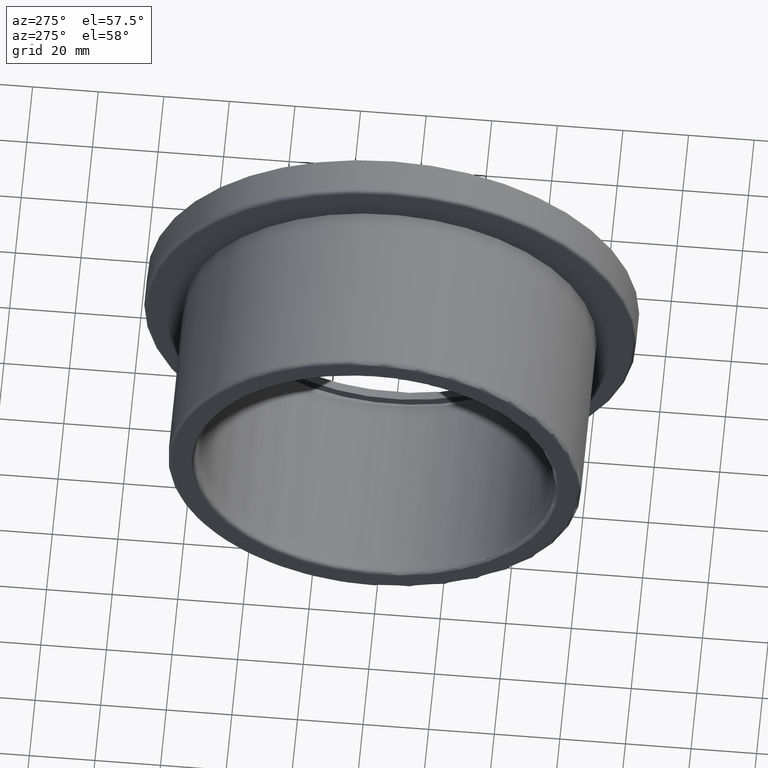
[diagram: clean part render]
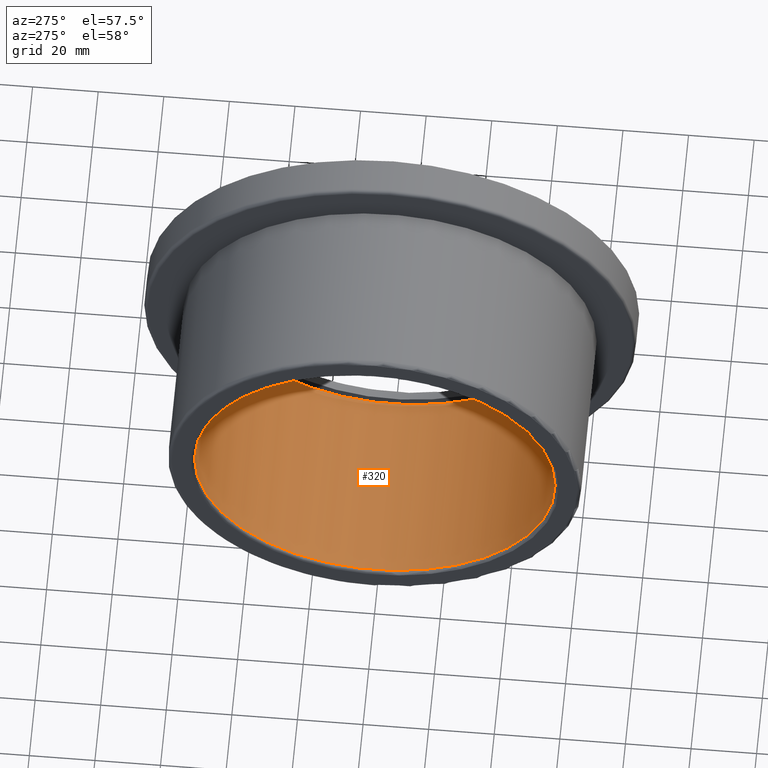
[diagram: same view with one face highlighted and labeled with its STEP entity id]
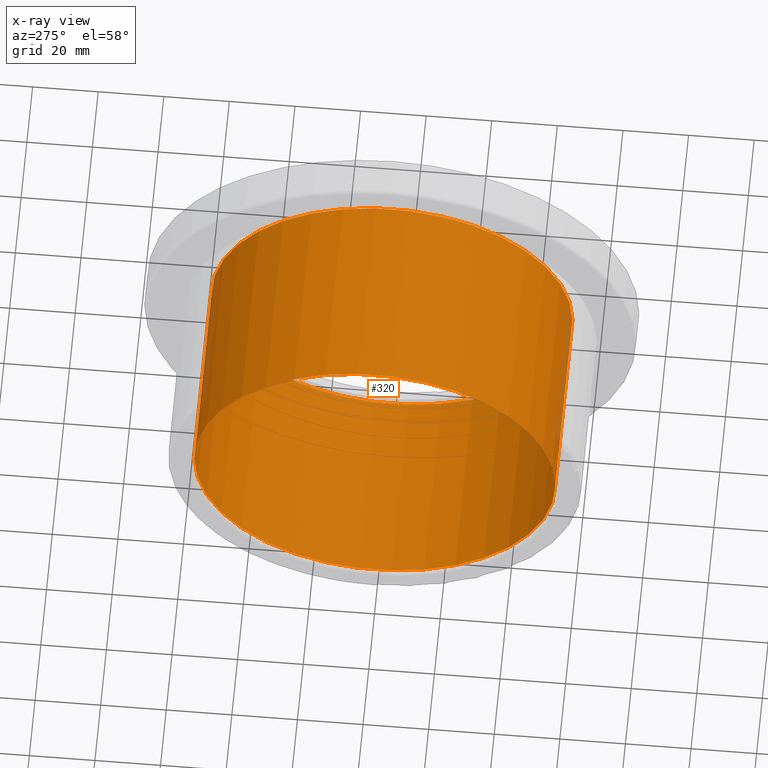
[diagram: x-ray of the same camera — body ghosted, the highlighted face saturated]
A machine part, auxiliary view. The second image highlights one B-rep face of the part: STEP entity #320.
The next image is the same camera in x-ray: the body ghosted, the highlighted face saturated — about 1% of this face is hidden behind the body in this view.
In plain terms, the highlighted cylindrical surface (bore or boss wall) has radius 55 mm, axis along (-1, 0, 0).
Its self-contained STEP definition (entity closure, byte-faithful):
#21=CYLINDRICAL_SURFACE('',#361,55.);
#55=FACE_BOUND('',#122,.T.);
#81=FACE_OUTER_BOUND('',#121,.T.);
#121=EDGE_LOOP('',(#265));
#122=EDGE_LOOP('',(#266));
#157=CIRCLE('',#358,55.);
#159=CIRCLE('',#362,55.);
#184=VERTEX_POINT('',#1453);
#186=VERTEX_POINT('',#1459);
#215=EDGE_CURVE('',#184,#184,#157,.T.);
#217=EDGE_CURVE('',#186,#186,#159,.T.);
#265=ORIENTED_EDGE('',*,*,#217,.F.);
#266=ORIENTED_EDGE('',*,*,#215,.F.);
#320=ADVANCED_FACE('',(#81,#55),#21,.F.);
#358=AXIS2_PLACEMENT_3D('',#1454,#429,#430);
#361=AXIS2_PLACEMENT_3D('',#1458,#435,#436);
#362=AXIS2_PLACEMENT_3D('',#1460,#437,#438);
#429=DIRECTION('center_axis',(1.,0.,0.));
#430=DIRECTION('ref_axis',(0.,1.,6.12323399573677E-17));
#435=DIRECTION('center_axis',(-1.,0.,0.));
#436=DIRECTION('ref_axis',(0.,-1.,0.));
#437=DIRECTION('center_axis',(-1.,0.,0.));
#438=DIRECTION('ref_axis',(0.,0.,1.));
#1453=CARTESIAN_POINT('',(1.1,-55.,-1.01033360929657E-14));
#1454=CARTESIAN_POINT('Origin',(1.1,0.,0.));
#1458=CARTESIAN_POINT('Origin',(30.5,0.,0.));
#1459=CARTESIAN_POINT('',(61.,-55.,0.));
#1460=CARTESIAN_POINT('Origin',(61.,0.,0.));